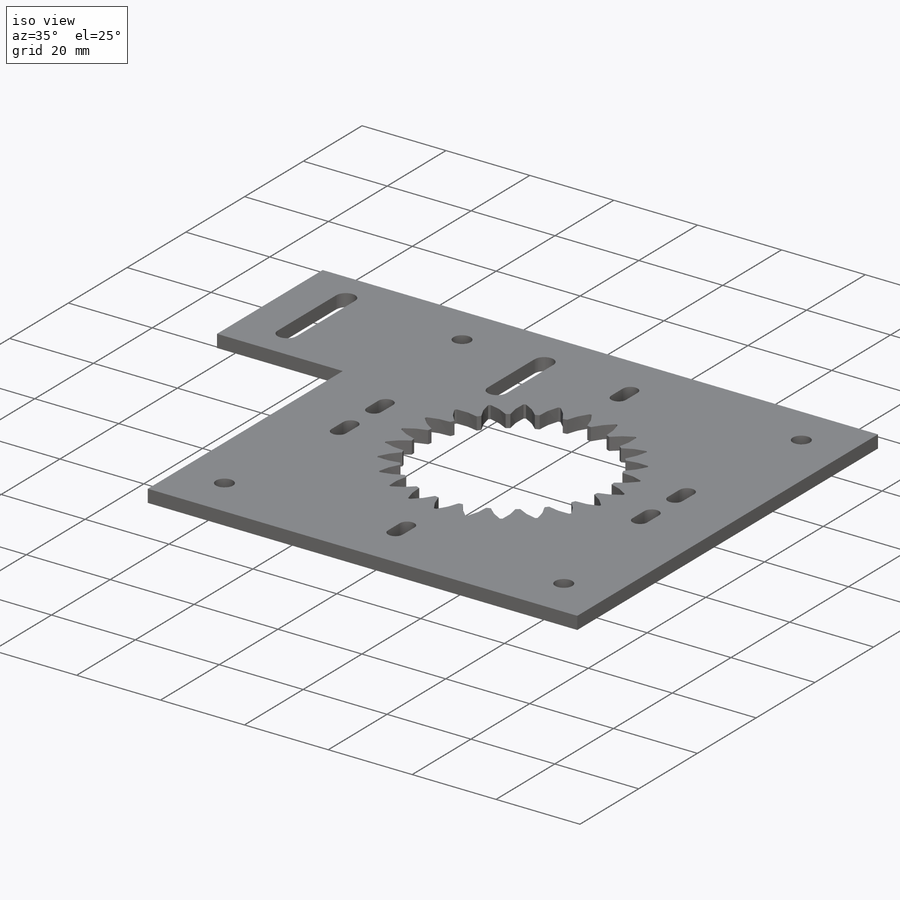
[diagram: iso view]
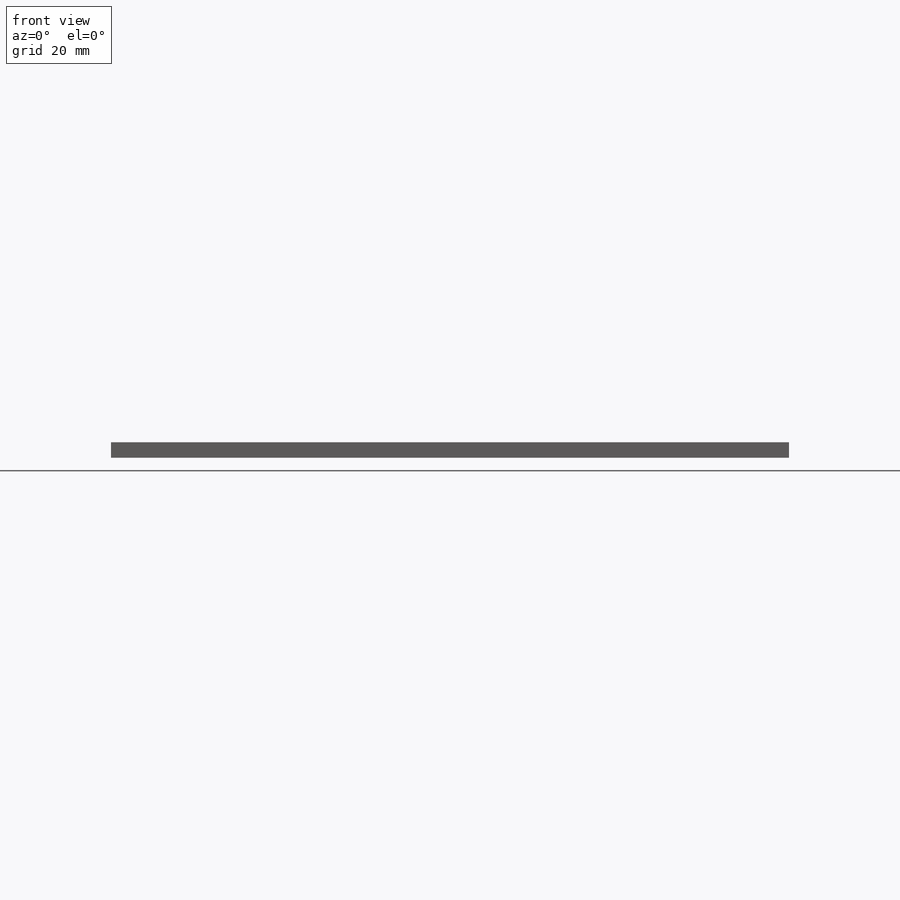
[diagram: front view]
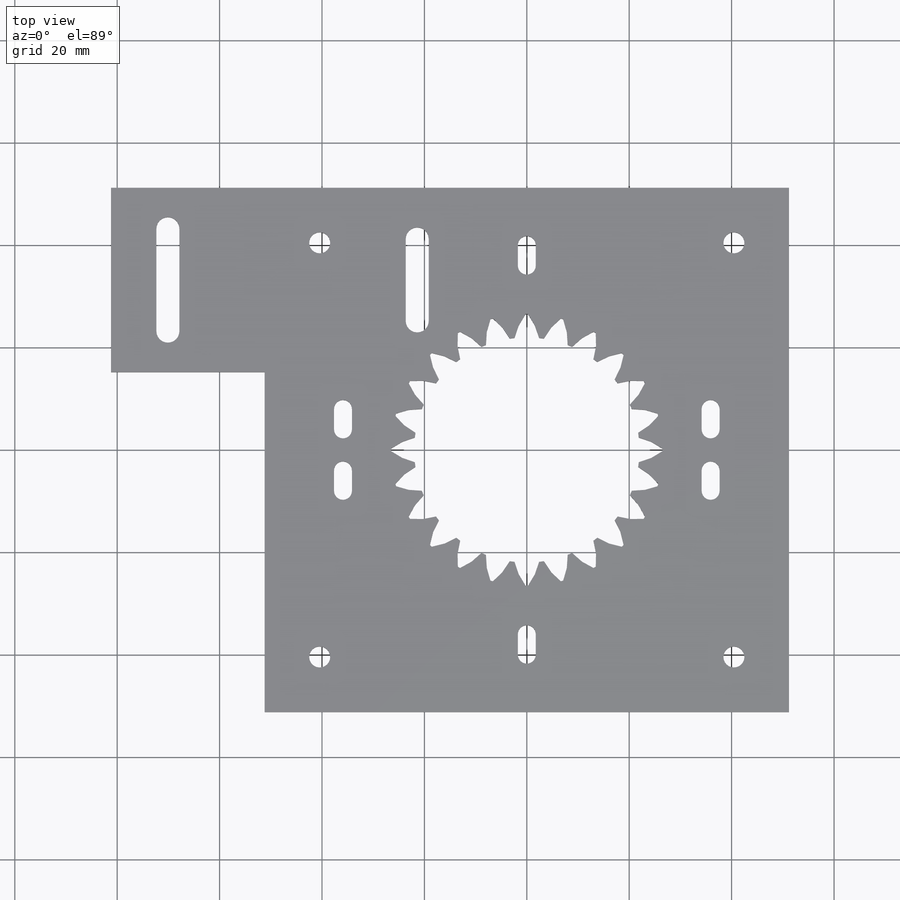
[diagram: top view]
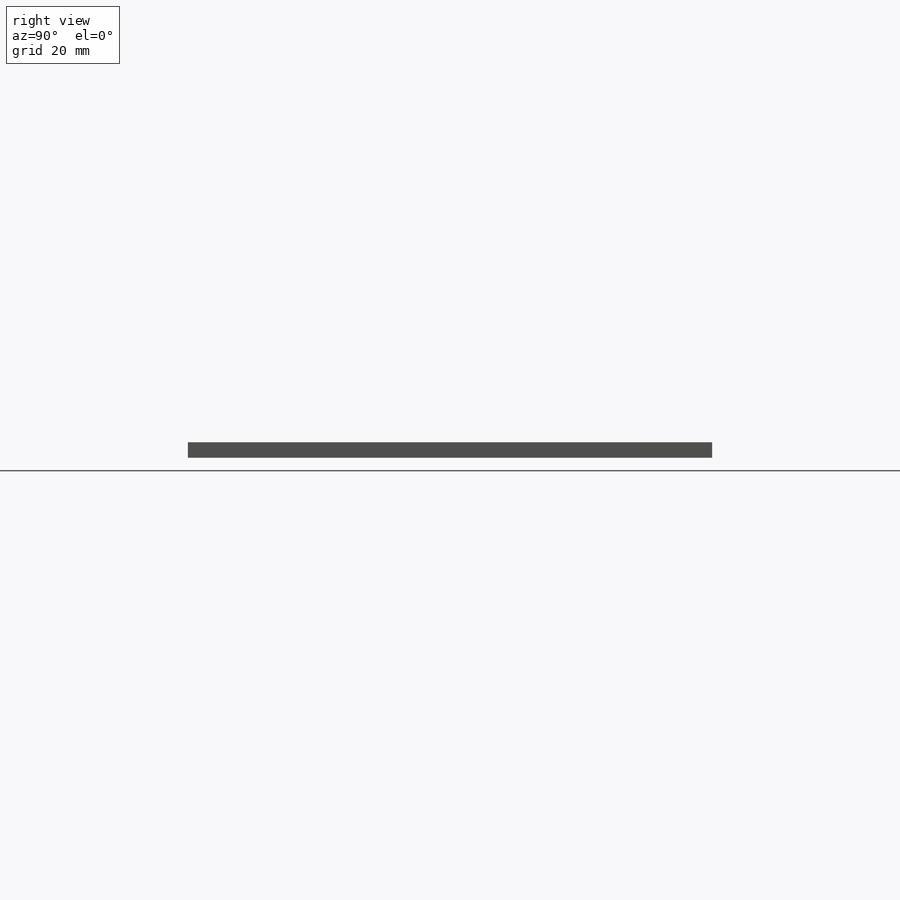
[diagram: right view]
SOLIDWORKS PART (.sldprt)
format: sldprt  version: not decoded by parser v0  size: 404,992 bytes
history: native  units: mm
features: sketch x7, cut_extrude x5, mirror x2, material x1, extrude x1, pattern_circular x1 (+13 scaffold rows collapsed)
feature tree (30):
  scaffold x13  (default folders/planes/origin — collapsed)
  material  "Material <not specified>"
  sketch  "Sketch4"
  sketch  "Sketch1"  dims[D1=102.4mm D2=102.4mm D3=30.0mm D4=36.0mm]
  extrude  "Boss-Extrude1"  Depth=3.05mm
  sketch  "Sketch11"
  cut_extrude  "Cut-Extrude6"  Depth=10mm
  sketch  "Sketch3"  dims[D3=4.1mm D1=10.75mm D2=10.75mm]
  cut_extrude  "Cut-Extrude2"  Depth=10mm
  pattern_circular  "CirPattern1"  Count=4 Angle=360deg
  sketch  "Sketch7"  dims[D1=38.0mm D2=3.5mm D3=4.0mm]
  cut_extrude  "Cut-Extrude3"  [1 undecoded]
  sketch  "Sketch9"  dims[c1.D3=~2.943176mm c1.D1=3.5mm c1.D2=4.0mm c2.D3=15.3mm c2.D4=6.0mm]
  cut_extrude  "Cut-Extrude4"  Depth=10mm
  mirror  "Mirror1"
  mirror  "Mirror2"
  sketch  "Sketch10"  dims[D1=4.5mm D2=20.0mm D3=70.1mm D4=18.0mm D5=4.5mm D6=16.0mm D7=48.7mm]
  cut_extrude  "Cut-Extrude5"  Depth=10mm
decode coverage: 11 of 16 modeling features carry decoded parameters
note: ~ marks probable driven/reference dimensions
note: 1 parameter value undecoded
note: suppression state not decoded; provenance and decode notes live in map.json
